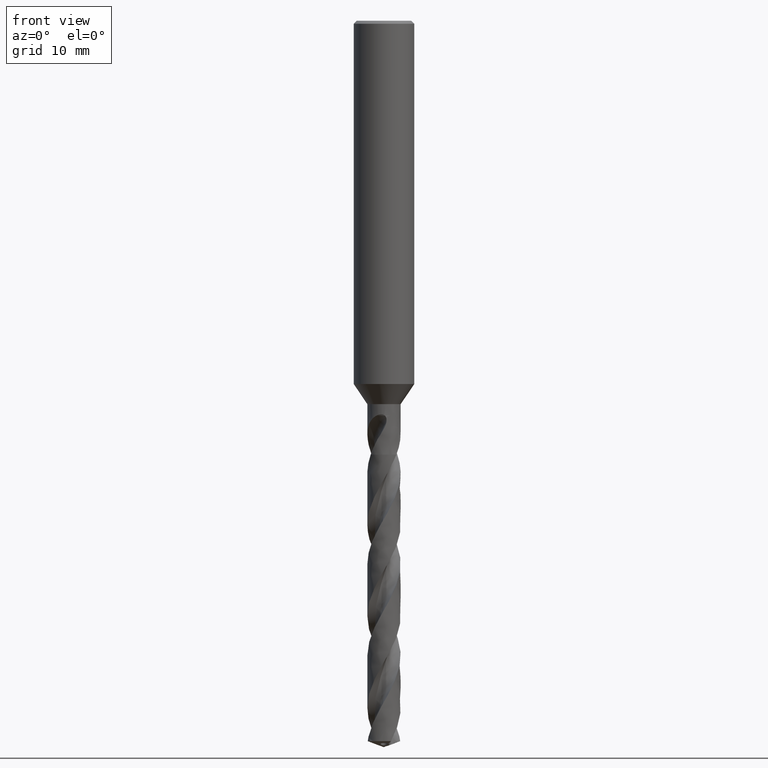
[diagram: clean part render]
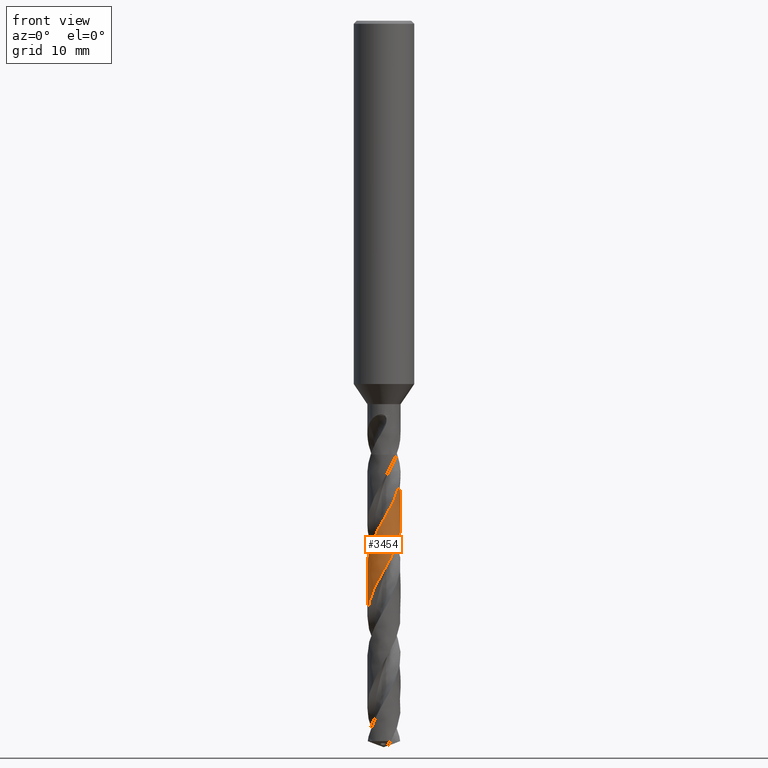
[diagram: same view with one face highlighted and labeled with its STEP entity id]
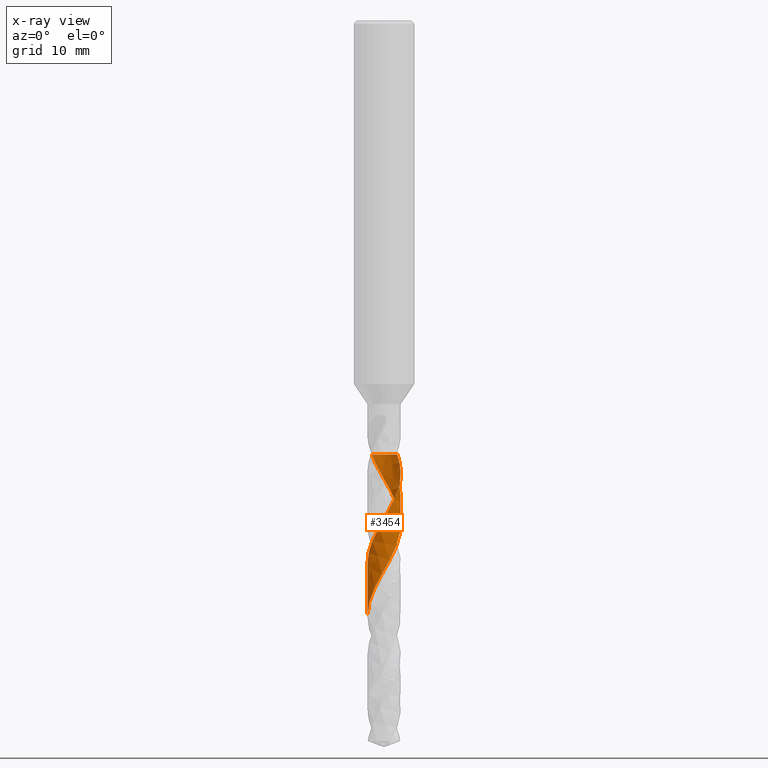
[diagram: x-ray of the same camera — body ghosted, the highlighted face saturated]
A machine part, front view. The second image highlights one B-rep face of the part: STEP entity #3454.
The next image is the same camera in x-ray: the body ghosted, the highlighted face saturated — about 0% of this face is hidden behind the body in this view.
In plain terms, the highlighted face is a freeform B-spline surface patch.
Its self-contained STEP definition (entity closure, byte-faithful):
#1356 = VERTEX_POINT('', #1357);
#1357 = CARTESIAN_POINT('', (1.3185838363879, 0.991885409922217, -43.));
#1409 = EDGE_CURVE('', #1410, #1356, #1412, .T.);
#1410 = VERTEX_POINT('', #1411);
#1411 = CARTESIAN_POINT('', (-1.23307644546772, 1.09636785780718, -43.));
#1412 = CIRCLE('', #1413, 1.65);
#1413 = AXIS2_PLACEMENT_3D('', #1414, #1415, #1416);
#1414 = CARTESIAN_POINT('', (1.6122417663615E-31, 2.63299061816681E-15, -43.));
#1415 = DIRECTION('', (3.74939945665464E-33, 6.12323399573677E-17, -1.));
#1416 = DIRECTION('', (-1., 6.12323399573677E-17, 0.));
#2965 = EDGE_CURVE('', #2966, #1410, #2968, .T.);
#2966 = VERTEX_POINT('', #2967);
#2967 = CARTESIAN_POINT('', (-1.65, 3.71346838781241E-15, -58.9955410718889));
#2968 = B_SPLINE_CURVE_WITH_KNOTS('', 3, (#2969, #2970, #2971, #2972, #2973, #2974, #2975, #2976, #2977, #2978, #2979, #2980, #2981, #2982, #2983, #2984, #2985, #2986, #2987, #2988, #2989, #2990, #2991, #2992, #2993, #2994, #2995, #2996, #2997, #2998, #2999, #3000, #3001, #3002, #3003, #3004, #3005, #3006, #3007, #3008, #3009, #3010, #3011, #3012, #3013, #3014, #3015, #3016, #3017, #3018, #3019, #3020, #3021, #3022, #3023, #3024, #3025, #3026, #3027, #3028, #3029, #3030, #3031, #3032, #3033, #3034, #3035, #3036, #3037, #3038, #3039, #3040, #3041, #3042, #3043, #3044, #3045, #3046, #3047, #3048, #3049, #3050, #3051, #3052, #3053, #3054, #3055, #3056, #3057, #3058, #3059, #3060, #3061, #3062, #3063, #3064, #3065, #3066, #3067, #3068, #3069, #3070, #3071, #3072, #3073, #3074, #3075, #3076, #3077, #3078, #3079, #3080, #3081, #3082, #3083, #3084, #3085, #3086, #3087, #3088, #3089, #3090, #3091, #3092, #3093, #3094, #3095, #3096, #3097, #3098, #3099, #3100, #3101, #3102, #3103, #3104, #3105, #3106, #3107, #3108, #3109, #3110, #3111, #3112, #3113, #3114, #3115, #3116), .UNSPECIFIED., .F., .U., (4, 3, 3, 3, 3, 3, 3, 3, 3, 3, 3, 3, 3, 3, 3, 3, 3, 3, 3, 3, 3, 3, 3, 3, 3, 3, 3, 3, 3, 3, 3, 3, 3, 3, 3, 3, 3, 3, 3, 3, 3, 3, 3, 3, 3, 3, 3, 3, 3, 4), (0., 0.444740282751176, 0.88919238887892, 1.33337172052447, 1.77729034160528, 2.2209573495059, 2.66437895416435, 3.10755915572415, 3.55049986881, 3.99320075921372, 4.43565918826843, 4.87787046750958, 5.17283750764678, 5.2117499061966, 5.25067660019521, 5.69540161535464, 6.13983808343908, 6.5840012971677, 7.02790317543981, 7.47155261147318, 7.91495571559948, 8.35811637802374, 8.80103634212719, 9.24371505091581, 9.68614973535892, 10.1283355079474, 10.4232901990217, 10.4622155714092, 10.9069467816921, 11.3513878763261, 11.795554241555, 12.2394578554942, 12.6831076862579, 13.1265099115051, 13.5696684205318, 14.0125849331577, 14.4552589241357, 14.8976875909087, 15.3398659741852, 15.6348168467118, 15.6737476654412, 16.1184804829134, 16.5629217059255, 17.0070875348695, 17.4509891200575, 17.7467139132047, 17.9438033842188, 18.1408839098957, 18.3379296619331, 18.4335379597018), .UNSPECIFIED.);
#2969 = CARTESIAN_POINT('', (-1.65, 3.61961851368517E-15, -58.9955410718889));
#2970 = CARTESIAN_POINT('', (-1.65, -0.0735453415207344, -58.8668236105132));
#2971 = CARTESIAN_POINT('', (-1.64507186348577, -0.147135034148387, -58.7380378134681));
#2972 = CARTESIAN_POINT('', (-1.63526327680564, -0.220031851175882, -58.6093251574586));
#2973 = CARTESIAN_POINT('', (-1.6254610457571, -0.292881433537652, -58.4806959028861));
#2974 = CARTESIAN_POINT('', (-1.61077403753169, -0.365118333328612, -58.3519983577927));
#2975 = CARTESIAN_POINT('', (-1.59134748129796, -0.43601971717664, -58.223373969759));
#2976 = CARTESIAN_POINT('', (-1.57193284776354, -0.506877586576205, -58.0948285226289));
#2977 = CARTESIAN_POINT('', (-1.54776349643554, -0.576478232133069, -57.9662147627864));
#2978 = CARTESIAN_POINT('', (-1.51907926578929, -0.64412590714012, -57.8376740898172));
#2979 = CARTESIAN_POINT('', (-1.49041187132032, -0.711733876419558, -57.709208863653));
#2980 = CARTESIAN_POINT('', (-1.45720387356133, -0.777464295646043, -57.5806754830092));
#2981 = CARTESIAN_POINT('', (-1.41978537500387, -0.840660150670369, -57.4522149395626));
#2982 = CARTESIAN_POINT('', (-1.3823880852603, -0.903820186269011, -57.3238272075826));
#2983 = CARTESIAN_POINT('', (-1.34074439132972, -0.964517217712765, -57.1953715313762));
#2984 = CARTESIAN_POINT('', (-1.29526842306389, -1.02214466305585, -57.0669886238166));
#2985 = CARTESIAN_POINT('', (-1.24981760868568, -1.07974023322753, -56.938676728032));
#2986 = CARTESIAN_POINT('', (-1.20048953413302, -1.13433202492486, -56.8102968528814));
#2987 = CARTESIAN_POINT('', (-1.14777443863229, -1.1853749778118, -56.6819897817676));
#2988 = CARTESIAN_POINT('', (-1.0950880417499, -1.23639014241133, -56.5537525622898));
#2989 = CARTESIAN_POINT('', (-1.03896150327351, -1.28391534254294, -56.4254473851034));
#2990 = CARTESIAN_POINT('', (-0.979952499206734, -1.32747621421194, -56.2972148783298));
#2991 = CARTESIAN_POINT('', (-0.920975382792614, -1.37101354618616, -56.1690516666358));
#2992 = CARTESIAN_POINT('', (-0.859055146429922, -1.41063789123904, -56.0408206807257));
#2993 = CARTESIAN_POINT('', (-0.794807115178205, -1.44595354339692, -55.9126621712126));
#2994 = CARTESIAN_POINT('', (-0.730593869925428, -1.48125007449825, -55.7845730509352));
#2995 = CARTESIAN_POINT('', (-0.663985724507097, -1.51228085289762, -55.6564162935516));
#2996 = CARTESIAN_POINT('', (-0.595644263335157, -1.53873581603733, -55.5283319919479));
#2997 = CARTESIAN_POINT('', (-0.527340231866269, -1.565176290148, -55.4003178404009));
#2998 = CARTESIAN_POINT('', (-0.457231092335533, -1.58707450715674, -55.2722360063149));
#2999 = CARTESIAN_POINT('', (-0.386012495733845, -1.60421144277745, -55.144226634322));
#3000 = CARTESIAN_POINT('', (-0.314833680638659, -1.62133880599505, -55.0162887662046));
#3001 = CARTESIAN_POINT('', (-0.242470058731068, -1.63372862933725, -54.8882833004882));
#3002 = CARTESIAN_POINT('', (-0.169639454627937, -1.64125636493313, -54.7603500964701));
#3003 = CARTESIAN_POINT('', (-0.121059446084126, -1.64627757084055, -54.6750151439351));
#3004 = CARTESIAN_POINT('', (-0.0722426572016795, -1.64914116891604, -54.5896605101177));
#3005 = CARTESIAN_POINT('', (-0.0234050023926589, -1.64983399342579, -54.5043277067535));
#3006 = CARTESIAN_POINT('', (-0.0169622815812642, -1.64992539164925, -54.4930705030594));
#3007 = CARTESIAN_POINT('', (-0.010518968203787, -1.64997905109805, -54.4818132688261));
#3008 = CARTESIAN_POINT('', (-0.00407556062652095, -1.64999496660007, -54.4705560984183));
#3009 = CARTESIAN_POINT('', (0.00237021409865749, -1.65001088794905, -54.4592947924057));
#3010 = CARTESIAN_POINT('', (0.00881613708207677, -1.64998903776454, -54.4480334545075));
#3011 = CARTESIAN_POINT('', (0.0152617139796174, -1.6499294166983, -54.4367721818355));
#3012 = CARTESIAN_POINT('', (0.0889003662518259, -1.64924826510633, -54.3081157472574));
#3013 = CARTESIAN_POINT('', (0.162537917764927, -1.64362580368542, -54.1793906306889));
#3014 = CARTESIAN_POINT('', (0.23543454786277, -1.63311682793165, -54.0507390236905));
#3015 = CARTESIAN_POINT('', (0.308283881072257, -1.6226146706255, -53.9221708885986));
#3016 = CARTESIAN_POINT('', (0.380472880803933, -1.60722087934112, -53.7935340939709));
#3017 = CARTESIAN_POINT('', (0.451277139813245, -1.58708819637792, -53.6649708099393));
#3018 = CARTESIAN_POINT('', (0.522037866003864, -1.56696789165933, -53.5364865709004));
#3019 = CARTESIAN_POINT('', (0.591492515221089, -1.5420926478603, -53.4079336916243));
#3020 = CARTESIAN_POINT('', (0.658944696826082, -1.51271011318256, -53.2794542124571));
#3021 = CARTESIAN_POINT('', (0.726357191113153, -1.48334486651489, -53.1510503276713));
#3022 = CARTESIAN_POINT('', (0.791842963648579, -1.44944565056052, -53.022577970707));
#3023 = CARTESIAN_POINT('', (0.854745503698767, -1.41135046105024, -52.8941788012496));
#3024 = CARTESIAN_POINT('', (0.917612271748858, -1.37327693586579, -52.7658526510232));
#3025 = CARTESIAN_POINT('', (0.977967430967737, -1.33097061116577, -52.6374581951385));
#3026 = CARTESIAN_POINT('', (1.03520612103844, -1.28485341069109, -52.5091368763472));
#3027 = CARTESIAN_POINT('', (1.09241302989962, -1.2387618163302, -52.3808868066833));
#3028 = CARTESIAN_POINT('', (1.1465691917606, -1.18881343682149, -52.2525684054235));
#3029 = CARTESIAN_POINT('', (1.19713232893439, -1.13550613693635, -52.1243231450858));
#3030 = CARTESIAN_POINT('', (1.2476678194523, -1.08222798414647, -51.9961480060416));
#3031 = CARTESIAN_POINT('', (1.29466902782678, -1.02553679274094, -51.8679045967127));
#3032 = CARTESIAN_POINT('', (1.33766538450836, -0.965997577164718, -51.7397341681566));
#3033 = CARTESIAN_POINT('', (1.38063838814502, -0.906490699723229, -51.6116333540982));
#3034 = CARTESIAN_POINT('', (1.41965763712274, -0.844074140734157, -51.4834644505403));
#3035 = CARTESIAN_POINT('', (1.45433230211512, -0.779369973135067, -51.3553683757768));
#3036 = CARTESIAN_POINT('', (1.48898808006717, -0.714701049430114, -51.2273420740229));
#3037 = CARTESIAN_POINT('', (1.51934175552874, -0.647676583025689, -51.0992477750905));
#3038 = CARTESIAN_POINT('', (1.54508915780623, -0.578964156429215, -50.9712262913988));
#3039 = CARTESIAN_POINT('', (1.57082236696157, -0.510289607202028, -50.8432753788871));
#3040 = CARTESIAN_POINT('', (1.59198229266616, -0.439854512128123, -50.7152564494743));
#3041 = CARTESIAN_POINT('', (1.60835663131133, -0.368359805784745, -50.5873103054277));
#3042 = CARTESIAN_POINT('', (1.62472175782385, -0.296905322056313, -50.4594361433326));
#3043 = CARTESIAN_POINT('', (1.63632439011335, -0.224315063098711, -50.3314940756666));
#3044 = CARTESIAN_POINT('', (1.64304744536637, -0.151311243055686, -50.203624592484));
#3045 = CARTESIAN_POINT('', (1.64753197835715, -0.102614924623775, -50.11833079461));
#3046 = CARTESIAN_POINT('', (1.64985076632509, -0.0537052843351462, -50.0330172402789));
#3047 = CARTESIAN_POINT('', (1.64999302000023, -0.00479936984045409, -49.9477255893857));
#3048 = CARTESIAN_POINT('', (1.65001179331506, 0.00165477715658817, -49.9364695918613));
#3049 = CARTESIAN_POINT('', (1.64999269687931, 0.00810909165281429, -49.9252135635148));
#3050 = CARTESIAN_POINT('', (1.64993573114225, 0.0145630731682358, -49.9139575995991));
#3051 = CARTESIAN_POINT('', (1.64928488467281, 0.0883012761562092, -49.7853556582925));
#3052 = CARTESIAN_POINT('', (1.64367935999084, 0.162040557793927, -49.656684649845));
#3053 = CARTESIAN_POINT('', (1.63317395533756, 0.235037936529359, -49.5280875088983));
#3054 = CARTESIAN_POINT('', (1.62267540377266, 0.307987696205425, -49.3995742569211));
#3055 = CARTESIAN_POINT('', (1.60727183269532, 0.380276730207617, -49.2709920277605));
#3056 = CARTESIAN_POINT('', (1.58711656173371, 0.451177370299885, -49.1424836340951));
#3057 = CARTESIAN_POINT('', (1.5669737496686, 0.522034183457823, -49.0140546773562));
#3058 = CARTESIAN_POINT('', (1.5420630764365, 0.591581880715684, -48.8855567528242));
#3059 = CARTESIAN_POINT('', (1.51263327777284, 0.659121056388153, -48.7571325943572));
#3060 = CARTESIAN_POINT('', (1.48322088861641, 0.726620278550175, -48.6287844065533));
#3061 = CARTESIAN_POINT('', (1.44926253847587, 0.79218718822778, -48.500367385751));
#3062 = CARTESIAN_POINT('', (1.41109779193691, 0.855162570269999, -48.3720239234353));
#3063 = CARTESIAN_POINT('', (1.37295486448268, 0.918101948792701, -48.243753836083));
#3064 = CARTESIAN_POINT('', (1.33056847236701, 0.978521857198581, -48.1154150953934));
#3065 = CARTESIAN_POINT('', (1.28436260870963, 1.03581498799187, -47.9871498276061));
#3066 = CARTESIAN_POINT('', (1.23818253301824, 1.09307614290177, -47.8589561459791));
#3067 = CARTESIAN_POINT('', (1.1881366868965, 1.14727672803902, -47.730693824261));
#3068 = CARTESIAN_POINT('', (1.13472544584276, 1.19787234818947, -47.6025049721238));
#3069 = CARTESIAN_POINT('', (1.08134356230023, 1.24844015843593, -47.4743865790432));
#3070 = CARTESIAN_POINT('', (1.02454174512688, 1.29546214162845, -47.3461995760051));
#3071 = CARTESIAN_POINT('', (0.964887726925381, 1.33846616484272, -47.2180859402397));
#3072 = CARTESIAN_POINT('', (0.905266284105861, 1.38144670476911, -47.0900422637286));
#3073 = CARTESIAN_POINT('', (0.84273063155515, 1.4204606073458, -46.9619301266708));
#3074 = CARTESIAN_POINT('', (0.777905802842531, 1.45511599603054, -46.8338911795952));
#3075 = CARTESIAN_POINT('', (0.713116469361696, 1.48975240894506, -46.7059223410288));
#3076 = CARTESIAN_POINT('', (0.645969528091105, 1.52007300517893, -46.5778851820574));
#3077 = CARTESIAN_POINT('', (0.577135807888312, 1.54577302966939, -46.4499211629711));
#3078 = CARTESIAN_POINT('', (0.508340234443698, 1.57145881153841, -46.3220280598904));
#3079 = CARTESIAN_POINT('', (0.437784688089421, 1.59255718410096, -46.1940666336958));
#3080 = CARTESIAN_POINT('', (0.366173428362234, 1.60885581092974, -46.0661783294019));
#3081 = CARTESIAN_POINT('', (0.294602679383617, 1.62514521756638, -45.9383623719841));
#3082 = CARTESIAN_POINT('', (0.221899522765681, 1.63665803610258, -45.810478159951));
#3083 = CARTESIAN_POINT('', (0.148789299076443, 1.64327774416875, -45.6826669299836));
#3084 = CARTESIAN_POINT('', (0.100021821779218, 1.64769335728743, -45.5974116682536));
#3085 = CARTESIAN_POINT('', (0.0510438277588669, 1.64993716758938, -45.5121365051866));
#3086 = CARTESIAN_POINT('', (0.00207316757491242, 1.64999869756814, -45.4268833833141));
#3087 = CARTESIAN_POINT('', (-0.00439051187904901, 1.65000681896283, -45.4156307506119));
#3088 = CARTESIAN_POINT('', (-0.0108542975432974, 1.64997695869579, -45.404378087406));
#3089 = CARTESIAN_POINT('', (-0.0173176867328104, 1.64990911802021, -45.393125489546));
#3090 = CARTESIAN_POINT('', (-0.0911533105005747, 1.64913412854463, -45.264579527414));
#3091 = CARTESIAN_POINT('', (-0.164981793429116, 1.64339117413407, -45.135964105231));
#3092 = CARTESIAN_POINT('', (-0.23805725465152, 1.6327365811755, -45.0074229797406));
#3093 = CARTESIAN_POINT('', (-0.311084803062393, 1.6220889740299, -44.8789661337966));
#3094 = CARTESIAN_POINT('', (-0.383440689459009, 1.60652446305441, -44.7504398352709));
#3095 = CARTESIAN_POINT('', (-0.45439465739887, 1.5861984413457, -44.6219877317077));
#3096 = CARTESIAN_POINT('', (-0.525304659340828, 1.56588501447634, -44.493615222353));
#3097 = CARTESIAN_POINT('', (-0.594894310308373, 1.54079291540269, -44.365174512764));
#3098 = CARTESIAN_POINT('', (-0.662457789318393, 1.51117493274982, -44.2368066185994));
#3099 = CARTESIAN_POINT('', (-0.729981073369012, 1.4815745704686, -44.1085150932419));
#3100 = CARTESIAN_POINT('', (-0.795551308038928, 1.44742392116805, -43.9801505478155));
#3101 = CARTESIAN_POINT('', (-0.858524996979357, 1.40905458714757, -43.8518680489204));
#3102 = CARTESIAN_POINT('', (-0.900477721990998, 1.38349314797948, -43.7664069541282));
#3103 = CARTESIAN_POINT('', (-0.941303546500961, 1.35604579123515, -43.680928639066));
#3104 = CARTESIAN_POINT('', (-0.980801638400164, 1.32684895376662, -43.5954624910921));
#3105 = CARTESIAN_POINT('', (-1.00712563361082, 1.30739035785142, -43.5385025124765));
#3106 = CARTESIAN_POINT('', (-1.03286496620324, 1.28715246270115, -43.481530232321));
#3107 = CARTESIAN_POINT('', (-1.0579839495678, 1.26616348172617, -43.4245694721865));
#3108 = CARTESIAN_POINT('', (-1.0831017928523, 1.24517545338205, -43.3676112973409));
#3109 = CARTESIAN_POINT('', (-1.1076062618125, 1.22343048220426, -43.3106531851177));
#3110 = CARTESIAN_POINT('', (-1.13145698052491, 1.20096007478245, -43.253715841713));
#3111 = CARTESIAN_POINT('', (-1.15530349092555, 1.17849363212501, -43.1967885445502));
#3112 = CARTESIAN_POINT('', (-1.17849990957218, 1.15529608170276, -43.1398691241574));
#3113 = CARTESIAN_POINT('', (-1.2009423920291, 1.13147574919988, -43.0829214200171));
#3114 = CARTESIAN_POINT('', (-1.21183167801077, 1.11991791849642, -43.0552899029791));
#3115 = CARTESIAN_POINT('', (-1.22254555201025, 1.10821187218582, -43.0276492376019));
#3116 = CARTESIAN_POINT('', (-1.23307644546772, 1.09636785780718, -43.));
#3454 = ADVANCED_FACE('', (#3455), #3585, .T.);
#3455 = FACE_OUTER_BOUND('', #3456, .T.);
#3456 = EDGE_LOOP('', (#3457, #3458, #3488, #3578, #3584));
#3457 = ORIENTED_EDGE('', *, *, #1409, .T.);
#3458 = ORIENTED_EDGE('', *, *, #3459, .T.);
#3459 = EDGE_CURVE('', #1356, #3460, #3462, .T.);
#3460 = VERTEX_POINT('', #3461);
#3461 = CARTESIAN_POINT('', (1.64763570035396, 0.0882983517349156, -44.6911895941619));
#3462 = B_SPLINE_CURVE_WITH_KNOTS('', 3, (#3463, #3464, #3465, #3466, #3467, #3468, #3469, #3470, #3471, #3472, #3473, #3474, #3475, #3476, #3477, #3478, #3479, #3480, #3481, #3482, #3483, #3484, #3485, #3486, #3487), .UNSPECIFIED., .F., .U., (4, 3, 3, 3, 3, 3, 3, 3, 4), (0.864765393384063, 1.0069943865074, 1.13833202133781, 1.43366930436383, 1.63059464878867, 1.9258207172984, 2.22096746382696, 2.51603991256401, 2.8171376991075), .UNSPECIFIED.);
#3463 = CARTESIAN_POINT('', (1.3185838363879, 0.991885409922217, -43.));
#3464 = CARTESIAN_POINT('', (1.33277928829439, 0.973014385863514, -43.0411102161542));
#3465 = CARTESIAN_POINT('', (1.34660836989325, 0.953786122521775, -43.0821898174932));
#3466 = CARTESIAN_POINT('', (1.36003204953577, 0.93424452058102, -43.1232459606942));
#3467 = CARTESIAN_POINT('', (1.37242779456815, 0.916199340598129, -43.1611581797493));
#3468 = CARTESIAN_POINT('', (1.38447971516426, 0.897884129745902, -43.1990567922596));
#3469 = CARTESIAN_POINT('', (1.39615568310188, 0.879345954981504, -43.2369596578284));
#3470 = CARTESIAN_POINT('', (1.42241128494705, 0.837659395190405, -43.3221913536059));
#3471 = CARTESIAN_POINT('', (1.44676341902571, 0.794854817867404, -43.4074908995853));
#3472 = CARTESIAN_POINT('', (1.4691492788128, 0.751066173225656, -43.4927727601572));
#3473 = CARTESIAN_POINT('', (1.48407574899514, 0.721868728732292, -43.5496371004607));
#3474 = CARTESIAN_POINT('', (1.49813572461523, 0.692217894603121, -43.6065045059759));
#3475 = CARTESIAN_POINT('', (1.51130143201499, 0.662169148775027, -43.6633602928232));
#3476 = CARTESIAN_POINT('', (1.53103916585586, 0.617120741621614, -43.7485972158408));
#3477 = CARTESIAN_POINT('', (1.54876999737547, 0.571165922163119, -43.8338481461793));
#3478 = CARTESIAN_POINT('', (1.56440539378621, 0.524533853905101, -43.9190846099657));
#3479 = CARTESIAN_POINT('', (1.58003658924469, 0.477914314852443, -44.0042981722339));
#3480 = CARTESIAN_POINT('', (1.59358362243206, 0.430590782138734, -44.0895371896672));
#3481 = CARTESIAN_POINT('', (1.60498888979065, 0.382767114115614, -44.1747538754786));
#3482 = CARTESIAN_POINT('', (1.61639128608194, 0.334955484825623, -44.259949109549));
#3483 = CARTESIAN_POINT('', (1.62565817065335, 0.286620739214663, -44.3451648550396));
#3484 = CARTESIAN_POINT('', (1.63274747790545, 0.237982506485298, -44.4303602685576));
#3485 = CARTESIAN_POINT('', (1.63998154781225, 0.1883510879002, -44.5172953604096));
#3486 = CARTESIAN_POINT('', (1.64495182838242, 0.138379051868115, -44.6042526056075));
#3487 = CARTESIAN_POINT('', (1.64763570035396, 0.0882983517349171, -44.6911895941619));
#3488 = ORIENTED_EDGE('', *, *, #3489, .T.);
#3489 = EDGE_CURVE('', #3460, #3490, #3492, .T.);
#3490 = VERTEX_POINT('', #3491);
#3491 = CARTESIAN_POINT('', (-1.65, 3.39895531956794E-15, -53.8591528746806));
#3492 = B_SPLINE_CURVE_WITH_KNOTS('', 3, (#3493, #3494, #3495, #3496, #3497, #3498, #3499, #3500, #3501, #3502, #3503, #3504, #3505, #3506, #3507, #3508, #3509, #3510, #3511, #3512, #3513, #3514, #3515, #3516, #3517, #3518, #3519, #3520, #3521, #3522, #3523, #3524, #3525, #3526, #3527, #3528, #3529, #3530, #3531, #3532, #3533, #3534, #3535, #3536, #3537, #3538, #3539, #3540, #3541, #3542, #3543, #3544, #3545, #3546, #3547, #3548, #3549, #3550, #3551, #3552, #3553, #3554, #3555, #3556, #3557, #3558, #3559, #3560, #3561, #3562, #3563, #3564, #3565, #3566, #3567, #3568, #3569, #3570, #3571, #3572, #3573, #3574, #3575, #3576, #3577), .UNSPECIFIED., .F., .U., (4, 3, 3, 3, 3, 3, 3, 3, 3, 3, 3, 3, 3, 3, 3, 3, 3, 3, 3, 3, 3, 3, 3, 3, 3, 3, 3, 3, 4), (0., 0.1312397930213, 0.170151970496607, 0.209080241010875, 0.65382449557888, 1.09827256580519, 1.54244098457988, 1.98634264970237, 2.42998689757036, 2.873380602066, 3.31652839325309, 3.75943242428508, 4.20209242490169, 4.64450616379364, 5.08666926822969, 5.28344451038769, 5.37096490015043, 5.8157219414361, 6.26018440307567, 6.70436867264784, 7.14828770545133, 7.59195129169593, 8.03536620867827, 8.47853703914693, 8.9214662607461, 9.36415392193749, 9.80659782032384, 10.2487937040992, 10.5738370700401), .UNSPECIFIED.);
#3493 = CARTESIAN_POINT('', (1.64763570035396, 0.0882983517349156, -44.6911895941619));
#3494 = CARTESIAN_POINT('', (1.64880552231142, 0.0664696269365902, -44.7290829062142));
#3495 = CARTESIAN_POINT('', (1.6495414854483, 0.044617229657021, -44.7669784643534));
#3496 = CARTESIAN_POINT('', (1.64984301118753, 0.0227604577207346, -44.8048724666596));
#3497 = CARTESIAN_POINT('', (1.6499324126016, 0.0162799949811747, -44.8161079167395));
#3498 = CARTESIAN_POINT('', (1.64998363083329, 0.00979902957678968, -44.8273434456008));
#3499 = CARTESIAN_POINT('', (1.64999666375637, 0.00331807065109559, -44.8385789576041));
#3500 = CARTESIAN_POINT('', (1.65000970206952, -0.00316556862638709, -44.8498191163156));
#3501 = CARTESIAN_POINT('', (1.64998452359742, -0.0096492576276916, -44.8610593556364));
#3502 = CARTESIAN_POINT('', (1.6499211323144, -0.0161324871723348, -44.8722995794933));
#3503 = CARTESIAN_POINT('', (1.6491969052028, -0.0902015134335652, -45.0007158927376));
#3504 = CARTESIAN_POINT('', (1.64347334543494, -0.164255439645122, -45.1292092107436));
#3505 = CARTESIAN_POINT('', (1.63281172629461, -0.237541294251813, -45.2576343175387));
#3506 = CARTESIAN_POINT('', (1.62215720742508, -0.310778343005748, -45.38597389764));
#3507 = CARTESIAN_POINT('', (1.6065592843744, -0.383330432722111, -45.5143901703345));
#3508 = CARTESIAN_POINT('', (1.58617932503474, -0.454461383213509, -45.6427384349998));
#3509 = CARTESIAN_POINT('', (1.5658121889822, -0.525547577354521, -45.7710059415723));
#3510 = CARTESIAN_POINT('', (1.54064630793837, -0.595293908500426, -45.8993499769321));
#3511 = CARTESIAN_POINT('', (1.51093948138701, -0.662994633150186, -46.0276259949904));
#3512 = CARTESIAN_POINT('', (1.48125049582601, -0.730654698863395, -46.1558249744866));
#3513 = CARTESIAN_POINT('', (1.4469932053434, -0.796346511307575, -46.2841004869086));
#3514 = CARTESIAN_POINT('', (1.40851665547132, -0.859407255764172, -46.4123081166283));
#3515 = CARTESIAN_POINT('', (1.370062418036, -0.922431431482735, -46.5404413991252));
#3516 = CARTESIAN_POINT('', (1.32735128511759, -0.982897303880376, -46.6686509189528));
#3517 = CARTESIAN_POINT('', (1.28081717667574, -1.04019582768457, -46.7967929070228));
#3518 = CARTESIAN_POINT('', (1.23430934787691, -1.09746199275662, -46.9248625282674));
#3519 = CARTESIAN_POINT('', (1.18393117918505, -1.15162804914604, -47.0530080622473));
#3520 = CARTESIAN_POINT('', (1.13019311607748, -1.20214954160082, -47.1810862378314));
#3521 = CARTESIAN_POINT('', (1.07648485696749, -1.25264301402005, -47.3090933791911));
#3522 = CARTESIAN_POINT('', (1.01936099547829, -1.29955190910409, -47.4371763516781));
#3523 = CARTESIAN_POINT('', (0.959398451107977, -1.34240627680729, -47.5651919465643));
#3524 = CARTESIAN_POINT('', (0.899468890043468, -1.38523707181639, -47.6931371245334));
#3525 = CARTESIAN_POINT('', (0.836638026211781, -1.42406482964792, -47.8211581019699));
#3526 = CARTESIAN_POINT('', (0.771538783178351, -1.45850193899483, -47.9491118901606));
#3527 = CARTESIAN_POINT('', (0.706475408401259, -1.49292007424913, -48.0769951786179));
#3528 = CARTESIAN_POINT('', (0.639074603259548, -1.5229902485165, -48.2049539253037));
#3529 = CARTESIAN_POINT('', (0.5700143676328, -1.54841325901461, -48.3328458352544));
#3530 = CARTESIAN_POINT('', (0.500992551769998, -1.57382212611959, -48.4606665960561));
#3531 = CARTESIAN_POINT('', (0.430236957173161, -1.5946170794767, -48.5885625528643));
#3532 = CARTESIAN_POINT('', (0.35845773396652, -1.61059245402426, -48.7163917318823));
#3533 = CARTESIAN_POINT('', (0.286719174837351, -1.62655877826674, -48.8441484936267));
#3534 = CARTESIAN_POINT('', (0.213879576068482, -1.63772852360659, -48.9719804433991));
#3535 = CARTESIAN_POINT('', (0.140667909482461, -1.64399286471743, -49.0997456360508));
#3536 = CARTESIAN_POINT('', (0.108086621544316, -1.64678067588186, -49.1566048051474));
#3537 = CARTESIAN_POINT('', (0.0754204004242303, -1.64859967134263, -49.2134711089347));
#3538 = CARTESIAN_POINT('', (0.0427340728467258, -1.6494465129303, -49.2703320285014));
#3539 = CARTESIAN_POINT('', (0.028196064415773, -1.64982316552647, -49.295622251947));
#3540 = CARTESIAN_POINT('', (0.0136530319766598, -1.65000759841047, -49.3209131807928));
#3541 = CARTESIAN_POINT('', (-0.000889321099917067, -1.64999976033573, -49.3462037099254));
#3542 = CARTESIAN_POINT('', (-0.0747899737958614, -1.64995992917253, -49.4747239432112));
#3543 = CARTESIAN_POINT('', (-0.148721102003426, -1.64494411363161, -49.6033206334365));
#3544 = CARTESIAN_POINT('', (-0.221935426637955, -1.63500601417946, -49.7318494444744));
#3545 = CARTESIAN_POINT('', (-0.295101258617307, -1.62507449711174, -49.8602931259514));
#3546 = CARTESIAN_POINT('', (-0.367631798376585, -1.61021629196779, -49.9888129995091));
#3547 = CARTESIAN_POINT('', (-0.438795236980071, -1.59058440203706, -50.1172653533829));
#3548 = CARTESIAN_POINT('', (-0.509914133904973, -1.5709647998393, -50.2456373080578));
#3549 = CARTESIAN_POINT('', (-0.579746374155555, -1.54655577682252, -50.3740850805343));
#3550 = CARTESIAN_POINT('', (-0.647588548293916, -1.51760636270364, -50.5024655925586));
#3551 = CARTESIAN_POINT('', (-0.715390211679688, -1.48867423521461, -50.6307694444342));
#3552 = CARTESIAN_POINT('', (-0.781279151032827, -1.45517520222423, -50.7591489815578));
#3553 = CARTESIAN_POINT('', (-0.84459356956803, -1.41744901222039, -50.8874612216535));
#3554 = CARTESIAN_POINT('', (-0.907871554769341, -1.37974453118757, -51.0156996263923));
#3555 = CARTESIAN_POINT('', (-0.968647195188641, -1.33777656813216, -51.1440137368245));
#3556 = CARTESIAN_POINT('', (-1.02631180988428, -1.29196906653839, -51.2722607046669));
#3557 = CARTESIAN_POINT('', (-1.08394410410638, -1.24618723961791, -51.4004357912916));
#3558 = CARTESIAN_POINT('', (-1.13853193617097, -1.19652007125154, -51.5286862576039));
#3559 = CARTESIAN_POINT('', (-1.1895295003803, -1.14346821893963, -51.6568699510119));
#3560 = CARTESIAN_POINT('', (-1.24049899197147, -1.09044557006943, -51.7849830831698));
#3561 = CARTESIAN_POINT('', (-1.28793825507647, -1.03398364814048, -51.9131712969314));
#3562 = CARTESIAN_POINT('', (-1.33137410973014, -0.974650183368515, -52.0412928465873));
#3563 = CARTESIAN_POINT('', (-1.37478628392693, -0.915349066148238, -52.1693445466489));
#3564 = CARTESIAN_POINT('', (-1.41424691630252, -0.85311473668221, -52.2974713013886));
#3565 = CARTESIAN_POINT('', (-1.44936390946557, -0.788571022761217, -52.4255313773108));
#3566 = CARTESIAN_POINT('', (-1.48446175086628, -0.724062509059794, -52.5535216130809));
#3567 = CARTESIAN_POINT('', (-1.51525877817306, -0.657177187124427, -52.6815868366912));
#3568 = CARTESIAN_POINT('', (-1.54145025435112, -0.588583990065068, -52.8095856146394));
#3569 = CARTESIAN_POINT('', (-1.56762730837953, -0.520028563360718, -52.937513910973));
#3570 = CARTESIAN_POINT('', (-1.58923237853559, -0.449692504293215, -53.0655168262089));
#3571 = CARTESIAN_POINT('', (-1.60605275827167, -0.378278386440738, -53.1934536554956));
#3572 = CARTESIAN_POINT('', (-1.62286370924186, -0.306904300205203, -53.3213187690165));
#3573 = CARTESIAN_POINT('', (-1.63491373612163, -0.234375383677069, -53.449258268919));
#3574 = CARTESIAN_POINT('', (-1.64208568539903, -0.161414379184722, -53.5771316847693));
#3575 = CARTESIAN_POINT('', (-1.64735754481477, -0.107783191394946, -53.6711271447621));
#3576 = CARTESIAN_POINT('', (-1.65, -0.0538816642134513, -53.7651528237962));
#3577 = CARTESIAN_POINT('', (-1.65, -2.83217140614075E-15, -53.8591528746806));
#3578 = ORIENTED_EDGE('', *, *, #3579, .T.);
#3579 = EDGE_CURVE('', #3490, #2966, #3580, .T.);
#3580 = LINE('', #3581, #3582);
#3581 = CARTESIAN_POINT('', (-1.65, 3.39895531956794E-15, -53.8591528746806));
#3582 = VECTOR('', #3583, 5.13638819720826);
#3583 = DIRECTION('', (0., 3.14513068244468E-16, -5.13638819720826));
#3584 = ORIENTED_EDGE('', *, *, #2965, .T.);
#3585 = (
   BOUNDED_SURFACE ()
   B_SPLINE_SURFACE (2, 1, ((#3586, #3587), (#3588, #3589), (#3590, #3591), (#3592, #3593), (#3594, #3595), (#3596, #3597), (#3598, #3599), (#3600, #3601), (#3602, #3603)), .UNSPECIFIED., .F., .F., .U.)
   B_SPLINE_SURFACE_WITH_KNOTS ((3, 2, 2, 2, 3), (2, 2), (1.20418159060019, 2.59181393921158, 5.18362787842316, 7.77544181763474, 10.3672557568463), (0.149703067946258, 0.628619382330687), .UNSPECIFIED.)
   GEOMETRIC_REPRESENTATION_ITEM ()
   RATIONAL_B_SPLINE_SURFACE (((0.854287077383532, 0.854287077383533), (0.843187777114087, 0.843187777114087), (1., 1.), (0.707106781186548, 0.707106781186548), (1., 1.), (0.707106781186548, 0.707106781186548), (1., 1.), (0.707106781186548, 0.707106781186548), (1., 1.)))
   REPRESENTATION_ITEM ('')
   SURFACE ()
);
#3586 = CARTESIAN_POINT('', (-1.23307644546772, 1.09636785780718, -43.));
#3587 = CARTESIAN_POINT('', (-1.23307644546772, 1.09636785780718, -58.9955410718889));
#3588 = CARTESIAN_POINT('', (-0.740824332486265, 1.65, -43.));
#3589 = CARTESIAN_POINT('', (-0.740824332486265, 1.65, -58.9955410718889));
#3590 = CARTESIAN_POINT('', (1.72563323017096E-31, 1.65, -43.));
#3591 = CARTESIAN_POINT('', (2.2186712959341E-31, 1.65, -58.9955410718889));
#3592 = CARTESIAN_POINT('', (1.65, 1.65, -43.));
#3593 = CARTESIAN_POINT('', (1.65, 1.65, -58.9955410718889));
#3594 = CARTESIAN_POINT('', (1.65, 2.73402397909647E-15, -43.));
#3595 = CARTESIAN_POINT('', (1.65, 3.7134683878124E-15, -58.9955410718889));
#3596 = CARTESIAN_POINT('', (1.65, -1.65, -43.));
#3597 = CARTESIAN_POINT('', (1.65, -1.65, -58.9955410718889));
#3598 = CARTESIAN_POINT('', (2.02066721859313E-16, -1.65, -43.));
#3599 = CARTESIAN_POINT('', (2.02066721859313E-16, -1.65, -58.9955410718889));
#3600 = CARTESIAN_POINT('', (-1.65, -1.65, -43.));
#3601 = CARTESIAN_POINT('', (-1.65, -1.65, -58.9955410718889));
#3602 = CARTESIAN_POINT('', (-1.65, 2.73402397909647E-15, -43.));
#3603 = CARTESIAN_POINT('', (-1.65, 3.71346838781241E-15, -58.9955410718889));